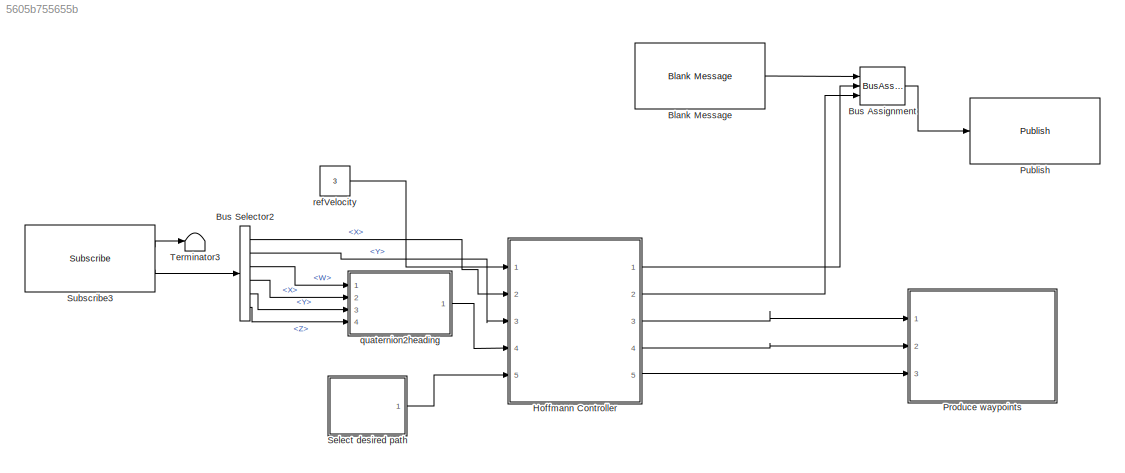
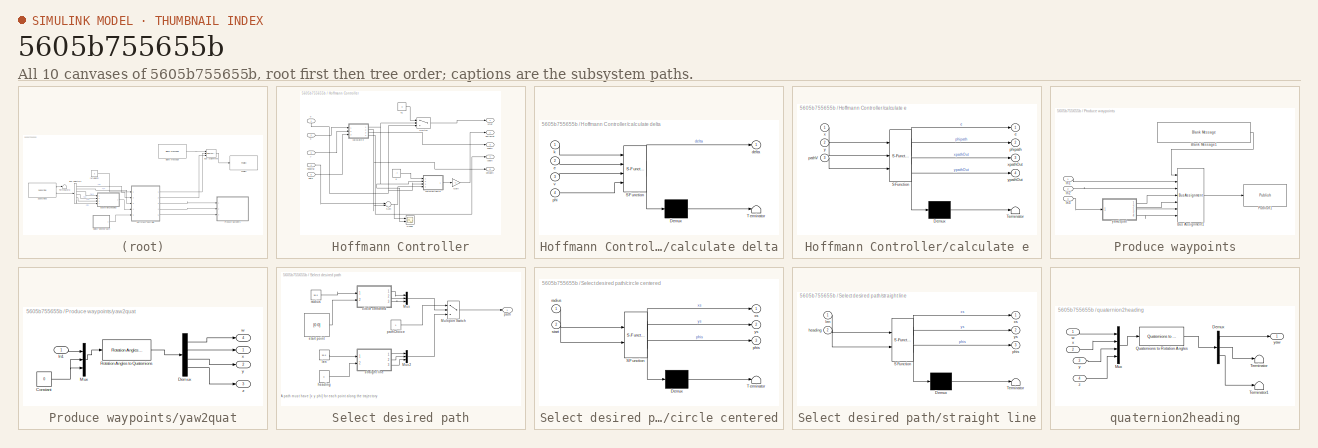
[diagram: thumbnail index - all 10 canvases of the model, root first then tree order]
MODEL slx_5605b755655b
KIND model
CONFIG AbsTol = auto
CONFIG FixedStep = 0.05
CONFIG MaxStep = auto
CONFIG MinStep = auto
CONFIG RelTol = 1e-3
CONFIG SampleTimeConstraint = Unconstrained
CONFIG Solver = FixedStepAuto
CONFIG SolverMode = Auto
CONFIG SolverName = FixedStepAuto
CONFIG StartTime = 0.0
CONFIG StopTime = inf
BLOCK [Reference] Blank Message  REF=robotlib/Blank Message
  Ports = [0, 1]
  SourceBlock = robotlib/Blank Message
  SourceLibraryInfo = This block requires Robotics System Toolbox
  SourceType = ROS Blank Message
BLOCK [BusAssignment] Bus Assignment
  AssignedSignals = Linear.X,Angular.Z
  Ports = [3, 1]
BLOCK [BusSelector] Bus Selector2
  OutputSignals = Pose.Pose.Position.X,Pose.Pose.Position.Y,Pose.Pose.Orientation.W,Pose.Pose.Orientation.X,Pose.Pose.Orientation.Y,Pose.Pose.Orientation.Z
  Ports = [1, 6]
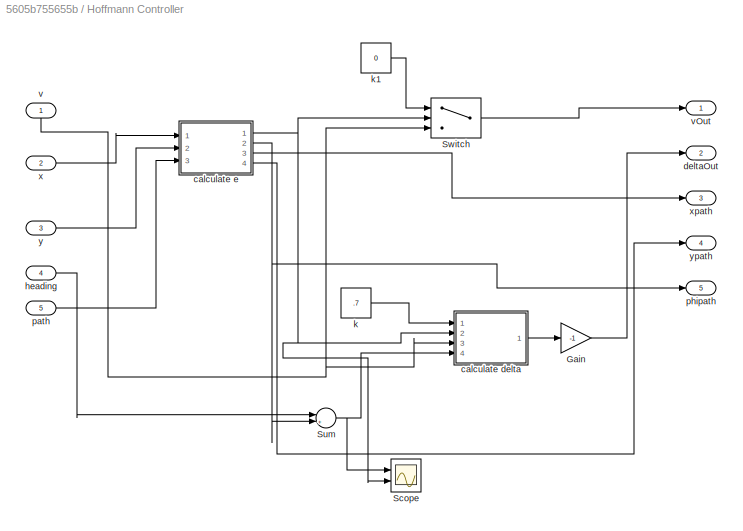
BLOCK [SubSystem] Hoffmann Controller
  Ports = [5, 5]
  RequestExecContextInheritance = off
  Variant = off
BLOCK [Gain] Hoffmann Controller/Gain
  Gain = -1
  OutDataTypeStr = Inherit: Inherit via internal rule
  ParamDataTypeStr = Inherit: Inherit via internal rule
  SaturateOnIntegerOverflow = off
BLOCK [Scope] Hoffmann Controller/Scope
  NumInputPorts = 2
  Ports = [2]
  ScopeSpecificationString = Simulink.scopes.TimeScopeBlockCfg('CurrentConfiguration', extmgr.ConfigurationSet(extmgr.Configuration('Core','General UI',true),extmgr.Configuration('Core','Source UI',true),extmgr.Configuration('Sources','WiredSimulink',true),extmgr.Configuration('Visuals','Time Domain',true,'SerializedDisplays',{struct('MinYLimReal','-7.55905','MaxYLimReal','1.64715','YLabelReal','','MinYLimMag','0.00000','MaxY...<+1391ch>
BLOCK [Sum] Hoffmann Controller/Sum
  IconShape = round
  InputSameDT = off
  Inputs = |+-
  OutDataTypeStr = Inherit: Inherit via internal rule
  Ports = [2, 1]
  SaturateOnIntegerOverflow = off
BLOCK [Switch] Hoffmann Controller/Switch
  Criteria = u2 > Threshold
  InputSameDT = off
  SaturateOnIntegerOverflow = off
  Threshold = 4
BLOCK [SubSystem] Hoffmann Controller/calculate delta
  ErrorFcn = Stateflow.Translate.translate
  PermitHierarchicalResolution = ExplicitOnly
  Ports = [4, 1]
  RequestExecContextInheritance = off
  SFBlockType = MATLAB Function
  TreatAsAtomicUnit = on
  Variant = off
BLOCK [Demux] Hoffmann Controller/calculate delta/ Demux 
  Outputs = 1
  Ports = [1, 1]
BLOCK [S-Function] Hoffmann Controller/calculate delta/ SFunction 
  EnableBusSupport = on
  FunctionName = sf_sfun
  PortCounts = [4 2]
  Ports = [4, 2]
  SFunctionDeploymentMode = off
  Tag = Stateflow S-Function catvehicle_hoffmannFollower 3
BLOCK [Terminator] Hoffmann Controller/calculate delta/ Terminator 
BLOCK [Outport] Hoffmann Controller/calculate delta/delta
  IconDisplay = Port number
BLOCK [Inport] Hoffmann Controller/calculate delta/e
  IconDisplay = Port number
  Port = 2
BLOCK [Inport] Hoffmann Controller/calculate delta/k
  IconDisplay = Port number
BLOCK [Inport] Hoffmann Controller/calculate delta/phi
  IconDisplay = Port number
  Port = 4
BLOCK [Inport] Hoffmann Controller/calculate delta/v
  IconDisplay = Port number
  Port = 3
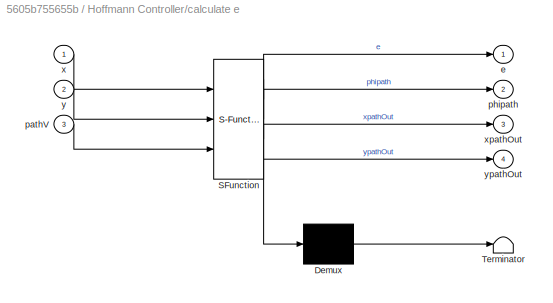
BLOCK [SubSystem] Hoffmann Controller/calculate e
  ErrorFcn = Stateflow.Translate.translate
  PermitHierarchicalResolution = ExplicitOnly
  Ports = [3, 4]
  RequestExecContextInheritance = off
  SFBlockType = MATLAB Function
  TreatAsAtomicUnit = on
  Variant = off
BLOCK [Demux] Hoffmann Controller/calculate e/ Demux 
  Outputs = 1
  Ports = [1, 1]
BLOCK [S-Function] Hoffmann Controller/calculate e/ SFunction 
  EnableBusSupport = on
  FunctionName = sf_sfun
  PortCounts = [3 5]
  Ports = [3, 5]
  SFunctionDeploymentMode = off
  Tag = Stateflow S-Function catvehicle_hoffmannFollower 1
BLOCK [Terminator] Hoffmann Controller/calculate e/ Terminator 
BLOCK [Outport] Hoffmann Controller/calculate e/e
  IconDisplay = Port number
BLOCK [Inport] Hoffmann Controller/calculate e/pathV
  IconDisplay = Port number
  Port = 3
BLOCK [Outport] Hoffmann Controller/calculate e/phipath
  IconDisplay = Port number
  Port = 2
BLOCK [Inport] Hoffmann Controller/calculate e/x
  IconDisplay = Port number
BLOCK [Outport] Hoffmann Controller/calculate e/xpathOut
  IconDisplay = Port number
  Port = 3
BLOCK [Inport] Hoffmann Controller/calculate e/y
  IconDisplay = Port number
  Port = 2
BLOCK [Outport] Hoffmann Controller/calculate e/ypathOut
  IconDisplay = Port number
  Port = 4
BLOCK [Outport] Hoffmann Controller/deltaOut
  IconDisplay = Port number
  Port = 2
BLOCK [Inport] Hoffmann Controller/heading
  IconDisplay = Port number
  Port = 4
BLOCK [Constant] Hoffmann Controller/k
  Value = .7
BLOCK [Constant] Hoffmann Controller/k1
  Value = 0
BLOCK [Inport] Hoffmann Controller/path
  IconDisplay = Port number
  Port = 5
BLOCK [Outport] Hoffmann Controller/phipath
  IconDisplay = Port number
  Port = 5
BLOCK [Inport] Hoffmann Controller/v
  IconDisplay = Port number
BLOCK [Outport] Hoffmann Controller/vOut
  IconDisplay = Port number
BLOCK [Inport] Hoffmann Controller/x
  IconDisplay = Port number
  Port = 2
BLOCK [Outport] Hoffmann Controller/xpath
  IconDisplay = Port number
  Port = 3
BLOCK [Inport] Hoffmann Controller/y
  IconDisplay = Port number
  Port = 3
BLOCK [Outport] Hoffmann Controller/ypath
  IconDisplay = Port number
  Port = 4
BLOCK [SubSystem] Produce waypoints
  Commented = on
  Ports = [3]
  RequestExecContextInheritance = off
  Variant = off
BLOCK [Reference] Produce waypoints/Blank Message1  REF=robotlib/Blank Message
  Ports = [0, 1]
  SourceBlock = robotlib/Blank Message
  SourceLibraryInfo = This block requires Robotics System Toolbox
  SourceType = ROS Blank Message
BLOCK [BusAssignment] Produce waypoints/Bus Assignment1
  AssignedSignals = Pose.Position.X,Pose.Position.Y,Pose.Orientation.X,Pose.Orientation.Y,Pose.Orientation.Z,Pose.Orientation.W
  Ports = [7, 1]
BLOCK [Inport] Produce waypoints/In1
  IconDisplay = Port number
BLOCK [Inport] Produce waypoints/In2
  IconDisplay = Port number
  Port = 2
BLOCK [Inport] Produce waypoints/In3
  IconDisplay = Port number
  Port = 3
BLOCK [Reference] Produce waypoints/Publish1  REF=robotlib/Publish
  Ports = [1]
  SourceBlock = robotlib/Publish
  SourceLibraryInfo = This block requires Robotics System Toolbox
  SourceType = ROS Publish
BLOCK [SubSystem] Produce waypoints/yaw2quat
  Ports = [1, 4]
  RequestExecContextInheritance = off
  Variant = off
BLOCK [Constant] Produce waypoints/yaw2quat/Constant
  Value = 0
BLOCK [Demux] Produce waypoints/yaw2quat/Demux
  DisplayOption = bar
  Ports = [1, 4]
BLOCK [Inport] Produce waypoints/yaw2quat/In1
  IconDisplay = Port number
BLOCK [Mux] Produce waypoints/yaw2quat/Mux
  DisplayOption = bar
  Inputs = 3
  Ports = [3, 1]
BLOCK [Reference] Produce waypoints/yaw2quat/Rotation Angles to Quaternions  REF=aerolibtransform2/Rotation Angles to Quaternions
  AttributesFormatString = Rotation Order: %<rotationOrder>
  Ports = [1, 1]
  SourceBlock = aerolibtransform2/Rotation Angles to Quaternions
  SourceType = Ang2Quat
BLOCK [Outport] Produce waypoints/yaw2quat/w
  IconDisplay = Port number
  Port = 4
BLOCK [Outport] Produce waypoints/yaw2quat/x
  IconDisplay = Port number
BLOCK [Outport] Produce waypoints/yaw2quat/y
  IconDisplay = Port number
  Port = 2
BLOCK [Outport] Produce waypoints/yaw2quat/z
  IconDisplay = Port number
  Port = 3
BLOCK [Reference] Publish  REF=robotlib/Publish
  Ports = [1]
  SourceBlock = robotlib/Publish
  SourceLibraryInfo = This block requires Robotics System Toolbox
  SourceType = ROS Publish
BLOCK [SubSystem] Select desired path
  Ports = [0, 1]
  RequestExecContextInheritance = off
  Variant = off
BLOCK [MultiPortSwitch] Select desired path/Multiport Switch
  InputSameDT = off
  Inputs = 2
  Ports = [3, 1]
  SaturateOnIntegerOverflow = off
BLOCK [Mux] Select desired path/Mux
  DisplayOption = bar
  Inputs = 3
  Ports = [3, 1]
BLOCK [Mux] Select desired path/Mux2
  DisplayOption = bar
  Inputs = 3
  Ports = [3, 1]
BLOCK [SubSystem] Select desired path/circle centered
  ErrorFcn = Stateflow.Translate.translate
  PermitHierarchicalResolution = ExplicitOnly
  Ports = [2, 3]
  RequestExecContextInheritance = off
  SFBlockType = MATLAB Function
  TreatAsAtomicUnit = on
  Variant = off
BLOCK [Demux] Select desired path/circle centered/ Demux 
  Outputs = 1
  Ports = [1, 1]
BLOCK [S-Function] Select desired path/circle centered/ SFunction 
  EnableBusSupport = on
  FunctionName = sf_sfun
  PortCounts = [2 4]
  Ports = [2, 4]
  SFunctionDeploymentMode = off
  Tag = Stateflow S-Function catvehicle_hoffmannFollower 4
BLOCK [Terminator] Select desired path/circle centered/ Terminator 
BLOCK [Outport] Select desired path/circle centered/phis
  IconDisplay = Port number
  Port = 3
BLOCK [Inport] Select desired path/circle centered/radius
  IconDisplay = Port number
BLOCK [Inport] Select desired path/circle centered/start
  IconDisplay = Port number
  Port = 2
BLOCK [Outport] Select desired path/circle centered/xs
  IconDisplay = Port number
BLOCK [Outport] Select desired path/circle centered/ys
  IconDisplay = Port number
  Port = 2
BLOCK [Constant] Select desired path/heading
  Value = 0
BLOCK [Constant] Select desired path/len
  Value = 36.6
BLOCK [Outport] Select desired path/path
  IconDisplay = Port number
BLOCK [Constant] Select desired path/pathChoice 
BLOCK [Constant] Select desired path/radius
  Value = 36.6
BLOCK [Constant] Select desired path/start point
  Value = [0 0]
BLOCK [SubSystem] Select desired path/straight line
  ErrorFcn = Stateflow.Translate.translate
  PermitHierarchicalResolution = ExplicitOnly
  Ports = [2, 3]
  RequestExecContextInheritance = off
  SFBlockType = MATLAB Function
  TreatAsAtomicUnit = on
  Variant = off
BLOCK [Demux] Select desired path/straight line/ Demux 
  Outputs = 1
  Ports = [1, 1]
BLOCK [S-Function] Select desired path/straight line/ SFunction 
  EnableBusSupport = on
  FunctionName = sf_sfun
  PortCounts = [2 4]
  Ports = [2, 4]
  SFunctionDeploymentMode = off
  Tag = Stateflow S-Function catvehicle_hoffmannFollower 5
BLOCK [Terminator] Select desired path/straight line/ Terminator 
BLOCK [Inport] Select desired path/straight line/heading
  IconDisplay = Port number
  Port = 2
BLOCK [Inport] Select desired path/straight line/len
  IconDisplay = Port number
BLOCK [Outport] Select desired path/straight line/phis
  IconDisplay = Port number
  Port = 3
BLOCK [Outport] Select desired path/straight line/xs
  IconDisplay = Port number
BLOCK [Outport] Select desired path/straight line/ys
  IconDisplay = Port number
  Port = 2
BLOCK [Reference] Subscribe3  REF=robotlib/Subscribe
  Ports = [0, 2]
  SourceBlock = robotlib/Subscribe
  SourceLibraryInfo = This block requires Robotics System Toolbox
  SourceType = ROS Subscribe
BLOCK [Terminator] Terminator3
BLOCK [SubSystem] quaternion2heading
  Ports = [4, 1]
  RequestExecContextInheritance = off
  Variant = off
BLOCK [Demux] quaternion2heading/Demux
  DisplayOption = bar
  Outputs = 3
  Ports = [1, 3]
BLOCK [Mux] quaternion2heading/Mux
  DisplayOption = bar
  Ports = [4, 1]
BLOCK [Reference] quaternion2heading/Quaternions to Rotation Angles  REF=aerolibtransform2/Quaternions to Rotation Angles
  AttributesFormatString = Rotation Order: %<rotationOrder>
  Ports = [1, 1]
  SourceBlock = aerolibtransform2/Quaternions to Rotation Angles
  SourceType = Quat2Ang
BLOCK [Terminator] quaternion2heading/Terminator
BLOCK [Terminator] quaternion2heading/Terminator1
BLOCK [Inport] quaternion2heading/w
  IconDisplay = Port number
BLOCK [Inport] quaternion2heading/x
  IconDisplay = Port number
  Port = 2
BLOCK [Inport] quaternion2heading/y
  IconDisplay = Port number
  Port = 3
BLOCK [Outport] quaternion2heading/yaw
  IconDisplay = Port number
BLOCK [Inport] quaternion2heading/z
  IconDisplay = Port number
  Port = 4
BLOCK [Constant] refVelocity
  Value = 3
ANNOTATION Select desired path: A path must have [x y phi] for each point along the trajectory
LINE Blank Message:1 -> Bus Assignment:1
LINE Bus Assignment:1 -> Publish:1
LINE Bus Selector2:1 -> Hoffmann Controller:2
LINE Bus Selector2:2 -> Hoffmann Controller:3
LINE Bus Selector2:3 -> quaternion2heading:1
LINE Bus Selector2:4 -> quaternion2heading:2
LINE Bus Selector2:5 -> quaternion2heading:3
LINE Bus Selector2:6 -> quaternion2heading:4
LINE Hoffmann Controller/Gain:1 -> Hoffmann Controller/deltaOut:1
NET Hoffmann Controller/Sum:1 -> Hoffmann Controller/Scope:1, Hoffmann Controller/calculate delta:4
LINE Hoffmann Controller/Switch:1 -> Hoffmann Controller/vOut:1
LINE Hoffmann Controller/calculate delta:1 -> Hoffmann Controller/Gain:1
NET Hoffmann Controller/calculate e:1 -> Hoffmann Controller/Scope:2, Hoffmann Controller/Switch:2, Hoffmann Controller/calculate delta:2
NET Hoffmann Controller/calculate e:2 -> Hoffmann Controller/Sum:2, Hoffmann Controller/phipath:1
LINE Hoffmann Controller/calculate e:3 -> Hoffmann Controller/xpath:1
LINE Hoffmann Controller/calculate e:4 -> Hoffmann Controller/ypath:1
LINE Hoffmann Controller/heading:1 -> Hoffmann Controller/Sum:1
LINE Hoffmann Controller/k1:1 -> Hoffmann Controller/Switch:1
LINE Hoffmann Controller/k:1 -> Hoffmann Controller/calculate delta:1
LINE Hoffmann Controller/path:1 -> Hoffmann Controller/calculate e:3
NET Hoffmann Controller/v:1 -> Hoffmann Controller/Switch:3, Hoffmann Controller/calculate delta:3
LINE Hoffmann Controller/x:1 -> Hoffmann Controller/calculate e:1
LINE Hoffmann Controller/y:1 -> Hoffmann Controller/calculate e:2
LINE Hoffmann Controller:1 -> Bus Assignment:2
LINE Hoffmann Controller:2 -> Bus Assignment:3
LINE Hoffmann Controller:3 -> Produce waypoints:1
LINE Hoffmann Controller:4 -> Produce waypoints:2
LINE Hoffmann Controller:5 -> Produce waypoints:3
LINE Produce waypoints/Blank Message1:1 -> Produce waypoints/Bus Assignment1:1
LINE Produce waypoints/Bus Assignment1:1 -> Produce waypoints/Publish1:1
LINE Produce waypoints/In1:1 -> Produce waypoints/Bus Assignment1:2
LINE Produce waypoints/In2:1 -> Produce waypoints/Bus Assignment1:3
LINE Produce waypoints/In3:1 -> Produce waypoints/yaw2quat:1
NET Produce waypoints/yaw2quat/Constant:1 -> Produce waypoints/yaw2quat/Mux:2, Produce waypoints/yaw2quat/Mux:3
LINE Produce waypoints/yaw2quat/Demux:1 -> Produce waypoints/yaw2quat/w:1
LINE Produce waypoints/yaw2quat/Demux:2 -> Produce waypoints/yaw2quat/x:1
LINE Produce waypoints/yaw2quat/Demux:3 -> Produce waypoints/yaw2quat/y:1
LINE Produce waypoints/yaw2quat/Demux:4 -> Produce waypoints/yaw2quat/z:1
LINE Produce waypoints/yaw2quat/In1:1 -> Produce waypoints/yaw2quat/Mux:1
LINE Produce waypoints/yaw2quat/Mux:1 -> Produce waypoints/yaw2quat/Rotation Angles to Quaternions:1
LINE Produce waypoints/yaw2quat/Rotation Angles to Quaternions:1 -> Produce waypoints/yaw2quat/Demux:1
LINE Produce waypoints/yaw2quat:1 -> Produce waypoints/Bus Assignment1:4
LINE Produce waypoints/yaw2quat:2 -> Produce waypoints/Bus Assignment1:5
LINE Produce waypoints/yaw2quat:3 -> Produce waypoints/Bus Assignment1:6
LINE Produce waypoints/yaw2quat:4 -> Produce waypoints/Bus Assignment1:7
LINE Select desired path/Multiport Switch:1 -> Select desired path/path:1
LINE Select desired path/Mux2:1 -> Select desired path/Multiport Switch:3
LINE Select desired path/Mux:1 -> Select desired path/Multiport Switch:2
LINE Select desired path/circle centered:1 -> Select desired path/Mux:1
LINE Select desired path/circle centered:2 -> Select desired path/Mux:2
LINE Select desired path/circle centered:3 -> Select desired path/Mux:3
LINE Select desired path/heading:1 -> Select desired path/straight line:2
LINE Select desired path/len:1 -> Select desired path/straight line:1
LINE Select desired path/pathChoice :1 -> Select desired path/Multiport Switch:1
LINE Select desired path/radius:1 -> Select desired path/circle centered:1
LINE Select desired path/start point:1 -> Select desired path/circle centered:2
LINE Select desired path/straight line:1 -> Select desired path/Mux2:1
LINE Select desired path/straight line:2 -> Select desired path/Mux2:2
LINE Select desired path/straight line:3 -> Select desired path/Mux2:3
LINE Select desired path:1 -> Hoffmann Controller:5
LINE Subscribe3:1 -> Terminator3:1
LINE Subscribe3:2 -> Bus Selector2:1
LINE quaternion2heading/Demux:1 -> quaternion2heading/yaw:1
LINE quaternion2heading/Demux:2 -> quaternion2heading/Terminator:1
LINE quaternion2heading/Demux:3 -> quaternion2heading/Terminator1:1
LINE quaternion2heading/Mux:1 -> quaternion2heading/Quaternions to Rotation Angles:1
LINE quaternion2heading/Quaternions to Rotation Angles:1 -> quaternion2heading/Demux:1
LINE quaternion2heading/w:1 -> quaternion2heading/Mux:1
LINE quaternion2heading/x:1 -> quaternion2heading/Mux:2
LINE quaternion2heading/y:1 -> quaternion2heading/Mux:3
LINE quaternion2heading/z:1 -> quaternion2heading/Mux:4
LINE quaternion2heading:1 -> Hoffmann Controller:4
LINE refVelocity:1 -> Hoffmann Controller:1
note: NET lines group one-source signal fan-out (src -> all destinations, sorted); 1:1 wires keep LINE
CHART Hoffmann Controller/calculate e states=1 transitions=1
  STATE_LABEL 'eML_blk_kernel()'
  STATE_LABEL 'SCRIPT:\nfunction [e,phipath,xpathOut,ypathOut] = fcn(x,y,pathV)\n%#codegen\npath=reshape(pathV,[],3);\nx1 = path(1,1);\ny1 = path(1,2);\nphi1=path(1,3);\netmp = inf;\ne = inf;\nindex=1;\n% find the nearest x,y\nfor i=1:length(path)\n   etmp = sqrt((x-path(i,1))^2+(y-path(i,2))^2);\n   if( etmp < e )\n       e = etmp;\n       index=i;\n   end\nend\n\nxpathOut=path(index,1);\nypathOut=path(index,2);\nphipath=path(index...<+142ch>'
CHART Hoffmann Controller/calculate delta states=1 transitions=1
  STATE_LABEL 'eML_blk_kernel()'
  STATE_LABEL 'SCRIPT:\nfunction delta = fcn(k,e,v,phi)\n%#codegen\nif( abs(v) < eps )\n    v = eps;\nend\n\n% if phi is greater than pi (or less than -pi), then \n% we normalize to between [-pi,pi]\nif( phi < -pi )\n    phi = phi+2*pi;\nelseif( phi > pi )\n    phi = phi-2*pi;\nend\n\ndelta = phi + atan2(k*e,v);'
CHART Select desired path/circle centered states=1 transitions=1
  STATE_LABEL 'eML_blk_kernel()'
  STATE_LABEL 'SCRIPT:\nfunction [xs,ys,phis] = fcn(radius,start)\n%#codegen\nangles=linspace(-pi,pi,301);\nr = radius*exp(angles*1j);\nxs = real(r)-radius+start(1);\nys = imag(r)+start(2);\nphis=(pi/2)+angles;\n\n% % To visualize the angles, run this code:\n% radius=3.6; start=[0 0];\n% angles=linspace(-pi,pi,300);\n% r = radius*exp(angles*1j);\n% xs = real(r)-radius+start(1);\n% ys = imag(r)+start(2);\n% % since the directio...<+227ch>'
CHART Select desired path/straight line states=1 transitions=1
  STATE_LABEL 'eML_blk_kernel()'
  STATE_LABEL 'SCRIPT:\nfunction [xs,ys,phis] = fcn(len,heading)\n%#codegen\nr = linspace(0,len,301);\nxs = r*cos(heading);\nys = r*sin(heading);\nphis = heading*ones(1,length(r));\n'
